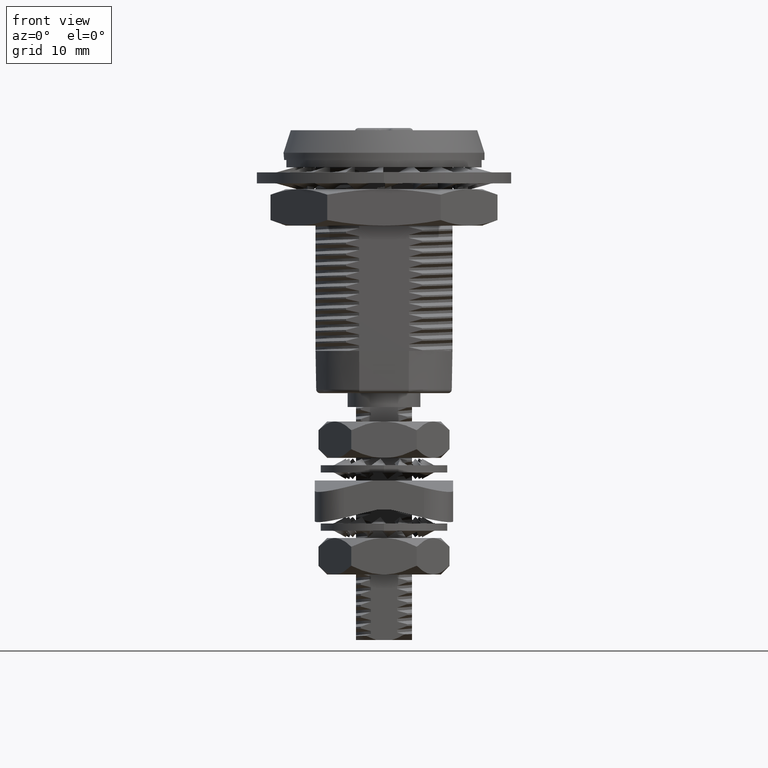
[diagram: clean part render]
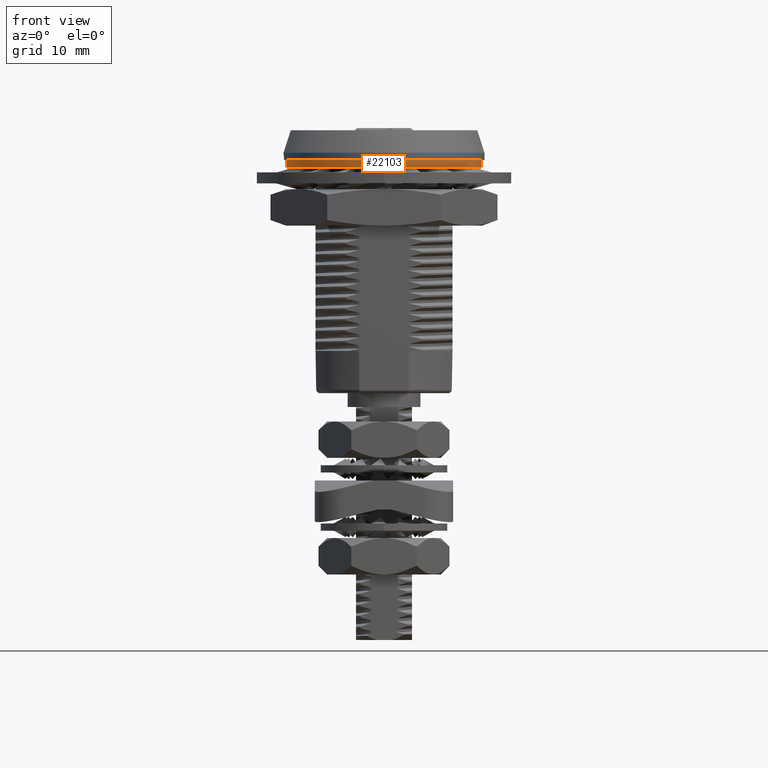
[diagram: same view with one face highlighted and labeled with its STEP entity id]
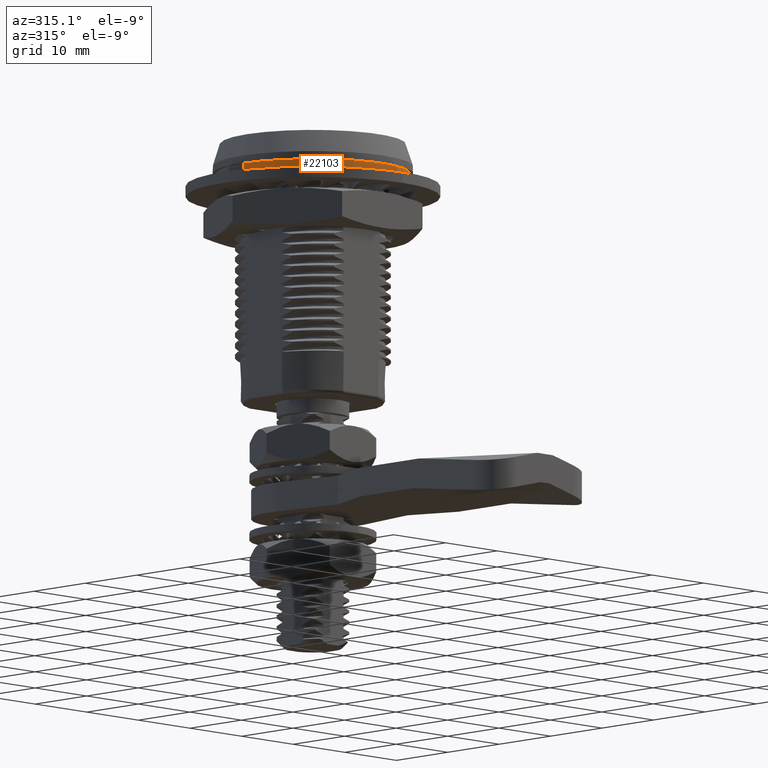
[diagram: same view with one face highlighted and labeled with its STEP entity id]
A machine part, front view. The second image highlights one B-rep face of the part: STEP entity #22103.
A second angle (auxiliary view) of the same face is appended — the face is thin or edge-on in the first view.
In plain terms, the highlighted face is a freeform B-spline surface patch.
Its self-contained STEP definition (entity closure, byte-faithful):
#1882=FACE_OUTER_BOUND('',#3160,.T.);
#3160=EDGE_LOOP('',(#16792,#16793,#16794,#16795));
#4601=B_SPLINE_CURVE_WITH_KNOTS('',3,(#48551,#48552,#48553,#48554,#48555,
#48556,#48557,#48558,#48559,#48560,#48561,#48562,#48563,#48564,#48565,#48566,
#48567,#48568,#48569,#48570,#48571,#48572,#48573,#48574,#48575,#48576),
 .UNSPECIFIED.,.F.,.F.,(4,1,1,1,1,1,1,1,1,1,1,1,1,1,1,1,1,1,1,1,1,1,1,4),
(0.,0.0252174026924127,0.0704347929121071,0.11565218313212,0.160869573351814,
0.206086963571508,0.251304353791203,0.296521744011215,0.34173913423091,
0.386956524450604,0.432173914670298,0.477391304890311,0.522608695110006,
0.5678260853297,0.613043475549394,0.658260865769407,0.703478255989101,0.748695646208795,
0.79391303642849,0.839130426648184,0.884347816868197,0.929565207087891,
0.974782597307585,1.),.UNSPECIFIED.);
#4604=B_SPLINE_CURVE_WITH_KNOTS('',3,(#48718,#48719,#48720,#48721,#48722,
#48723,#48724,#48725,#48726,#48727,#48728,#48729,#48730,#48731,#48732,#48733,
#48734,#48735,#48736,#48737,#48738,#48739,#48740,#48741,#48742,#48743),
 .UNSPECIFIED.,.F.,.F.,(4,1,1,1,1,1,1,1,1,1,1,1,1,1,1,1,1,1,1,1,1,1,1,4),
(0.0192307576991185,0.0434782608694987,0.0869565217389974,0.130434782608802,
0.173913043478301,0.2173913043478,0.260869565217298,0.304347826087103,0.347826086956602,
0.391304347826101,0.434782608695599,0.478260869565404,0.521739130434903,
0.565217391304401,0.6086956521739,0.652173913043705,0.695652173913203,0.739130434782702,
0.782608695652201,0.826086956521699,0.869565217391504,0.913043478261003,
0.956521739130501,0.980769242300883),.UNSPECIFIED.);
#6273=LINE('',#49498,#7608);
#6274=LINE('',#49499,#7609);
#7608=VECTOR('',#26180,1.00000000000001);
#7609=VECTOR('',#26181,1.00000000000001);
#9204=VERTEX_POINT('',#48523);
#9205=VERTEX_POINT('',#48524);
#9209=VERTEX_POINT('',#48716);
#9210=VERTEX_POINT('',#48717);
#11819=EDGE_CURVE('',#9205,#9204,#4601,.T.);
#11823=EDGE_CURVE('',#9209,#9210,#4604,.T.);
#12154=EDGE_CURVE('',#9210,#9204,#6273,.T.);
#12155=EDGE_CURVE('',#9205,#9209,#6274,.T.);
#16792=ORIENTED_EDGE('',*,*,#11823,.F.);
#16793=ORIENTED_EDGE('',*,*,#12155,.F.);
#16794=ORIENTED_EDGE('',*,*,#11819,.T.);
#16795=ORIENTED_EDGE('',*,*,#12154,.F.);
#21334=B_SPLINE_SURFACE_WITH_KNOTS('',3,1,((#49500,#49501),(#49502,#49503),
(#49504,#49505),(#49506,#49507),(#49508,#49509),(#49510,#49511),(#49512,
#49513),(#49514,#49515),(#49516,#49517),(#49518,#49519),(#49520,#49521),
(#49522,#49523),(#49524,#49525),(#49526,#49527),(#49528,#49529),(#49530,
#49531),(#49532,#49533),(#49534,#49535),(#49536,#49537),(#49538,#49539),
(#49540,#49541),(#49542,#49543),(#49544,#49545),(#49546,#49547),(#49548,
#49549),(#49550,#49551)),.UNSPECIFIED.,.F.,.F.,.F.,(4,1,1,1,1,1,1,1,1,1,
1,1,1,1,1,1,1,1,1,1,1,1,1,4),(2,2),(0.,0.0434782608694987,0.0869565217389974,
0.130434782608802,0.173913043478301,0.2173913043478,0.260869565217298,0.304347826087103,
0.347826086956602,0.391304347826101,0.434782608695599,0.478260869565404,
0.521739130434903,0.565217391304401,0.6086956521739,0.652173913043705,0.695652173913203,
0.739130434782702,0.782608695652201,0.826086956521699,0.869565217391504,
0.913043478261003,0.956521739130501,1.),(0.,0.157103117614296),
 .UNSPECIFIED.);
#22103=ADVANCED_FACE('',(#1882),#21334,.T.);
#26180=DIRECTION('',(0.,0.,-1.));
#26181=DIRECTION('',(0.,0.,1.));
#48523=CARTESIAN_POINT('',(182.399986141794,205.,-5.50000000000001));
#48524=CARTESIAN_POINT('',(155.600013858206,205.,-5.50000000000001));
#48551=CARTESIAN_POINT('Ctrl Pts',(155.600013858559,205.000000000097,-5.49999999999992));
#48552=CARTESIAN_POINT('Ctrl Pts',(155.600016264807,204.646137906937,-5.49999999999992));
#48553=CARTESIAN_POINT('Ctrl Pts',(155.639142188841,203.657765190564,-5.49999999999992));
#48554=CARTESIAN_POINT('Ctrl Pts',(155.88267756231,202.049112826764,-5.49999999999992));
#48555=CARTESIAN_POINT('Ctrl Pts',(156.43258450575,200.221721130288,-5.49999999999992));
#48556=CARTESIAN_POINT('Ctrl Pts',(157.23566961592,198.490590464957,-5.49999999999992));
#48557=CARTESIAN_POINT('Ctrl Pts',(158.27575428047,196.890595867665,-5.49999999999992));
#48558=CARTESIAN_POINT('Ctrl Pts',(159.531885358765,195.453970099884,-5.49999999999992));
#48559=CARTESIAN_POINT('Ctrl Pts',(160.978757332288,194.20965488249,-5.49999999999992));
#48560=CARTESIAN_POINT('Ctrl Pts',(162.587222089757,193.18271769101,-5.49999999999992));
#48561=CARTESIAN_POINT('Ctrl Pts',(164.324876136103,192.39384679803,-5.49999999999992));
#48562=CARTESIAN_POINT('Ctrl Pts',(166.156713379758,191.85893448422,-5.49999999999992));
#48563=CARTESIAN_POINT('Ctrl Pts',(168.045830351734,191.58875688174,-5.49999999999992));
#48564=CARTESIAN_POINT('Ctrl Pts',(169.954169648266,191.58875688174,-5.49999999999992));
#48565=CARTESIAN_POINT('Ctrl Pts',(171.843286620242,191.85893448422,-5.49999999999992));
#48566=CARTESIAN_POINT('Ctrl Pts',(173.675123863897,192.39384679803,-5.49999999999992));
#48567=CARTESIAN_POINT('Ctrl Pts',(175.412777910243,193.18271769101,-5.49999999999992));
#48568=CARTESIAN_POINT('Ctrl Pts',(177.021242667712,194.20965488249,-5.49999999999992));
#48569=CARTESIAN_POINT('Ctrl Pts',(178.468114641235,195.453970099884,-5.49999999999992));
#48570=CARTESIAN_POINT('Ctrl Pts',(179.72424571953,196.890595867665,-5.49999999999992));
#48571=CARTESIAN_POINT('Ctrl Pts',(180.76433038408,198.490590464957,-5.49999999999992));
#48572=CARTESIAN_POINT('Ctrl Pts',(181.56741549425,200.221721130288,-5.49999999999992));
#48573=CARTESIAN_POINT('Ctrl Pts',(182.11732243769,202.049112826764,-5.49999999999992));
#48574=CARTESIAN_POINT('Ctrl Pts',(182.360857811159,203.657765190563,-5.49999999999992));
#48575=CARTESIAN_POINT('Ctrl Pts',(182.399983735193,204.646137906937,-5.49999999999992));
#48576=CARTESIAN_POINT('Ctrl Pts',(182.399986141441,205.000000000097,-5.49999999999992));
#48716=CARTESIAN_POINT('',(155.600013858206,205.,-4.5));
#48717=CARTESIAN_POINT('',(182.399986142146,205.,-4.5));
#48718=CARTESIAN_POINT('Ctrl Pts',(155.600013858559,205.000000000094,-4.5));
#48719=CARTESIAN_POINT('Ctrl Pts',(155.600016264807,204.646137906935,-4.5));
#48720=CARTESIAN_POINT('Ctrl Pts',(155.639142188841,203.657765190563,-4.5));
#48721=CARTESIAN_POINT('Ctrl Pts',(155.88267756231,202.049112826764,-4.5));
#48722=CARTESIAN_POINT('Ctrl Pts',(156.43258450575,200.221721130288,-4.5));
#48723=CARTESIAN_POINT('Ctrl Pts',(157.23566961592,198.490590464957,-4.5));
#48724=CARTESIAN_POINT('Ctrl Pts',(158.27575428047,196.890595867665,-4.5));
#48725=CARTESIAN_POINT('Ctrl Pts',(159.531885358765,195.453970099884,-4.5));
#48726=CARTESIAN_POINT('Ctrl Pts',(160.978757332288,194.20965488249,-4.5));
#48727=CARTESIAN_POINT('Ctrl Pts',(162.587222089757,193.18271769101,-4.5));
#48728=CARTESIAN_POINT('Ctrl Pts',(164.324876136103,192.39384679803,-4.5));
#48729=CARTESIAN_POINT('Ctrl Pts',(166.156713379758,191.85893448422,-4.5));
#48730=CARTESIAN_POINT('Ctrl Pts',(168.045830351734,191.58875688174,-4.5));
#48731=CARTESIAN_POINT('Ctrl Pts',(169.954169648266,191.58875688174,-4.5));
#48732=CARTESIAN_POINT('Ctrl Pts',(171.843286620242,191.85893448422,-4.5));
#48733=CARTESIAN_POINT('Ctrl Pts',(173.675123863897,192.39384679803,-4.5));
#48734=CARTESIAN_POINT('Ctrl Pts',(175.412777910243,193.18271769101,-4.5));
#48735=CARTESIAN_POINT('Ctrl Pts',(177.021242667712,194.20965488249,-4.5));
#48736=CARTESIAN_POINT('Ctrl Pts',(178.468114641235,195.453970099884,-4.5));
#48737=CARTESIAN_POINT('Ctrl Pts',(179.72424571953,196.890595867665,-4.5));
#48738=CARTESIAN_POINT('Ctrl Pts',(180.76433038408,198.490590464957,-4.5));
#48739=CARTESIAN_POINT('Ctrl Pts',(181.56741549425,200.221721130288,-4.5));
#48740=CARTESIAN_POINT('Ctrl Pts',(182.11732243769,202.049112826764,-4.5));
#48741=CARTESIAN_POINT('Ctrl Pts',(182.360857811159,203.657765190562,-4.5));
#48742=CARTESIAN_POINT('Ctrl Pts',(182.399983735193,204.646137906935,-4.5));
#48743=CARTESIAN_POINT('Ctrl Pts',(182.399986141442,205.000000000094,-4.5));
#49498=CARTESIAN_POINT('',(182.399986141441,204.999999999906,-4.5));
#49499=CARTESIAN_POINT('',(155.600013858559,204.999999999906,-5.50000000000001));
#49500=CARTESIAN_POINT('Ctrl Pts',(155.62644183906,205.841392961693,-5.54549693616049));
#49501=CARTESIAN_POINT('Ctrl Pts',(155.62644183906,205.841392961693,-3.97446576001753));
#49502=CARTESIAN_POINT('Ctrl Pts',(155.58660058536,205.208134368163,-5.54549693616049));
#49503=CARTESIAN_POINT('Ctrl Pts',(155.58660058536,205.208134368163,-3.97446576001753));
#49504=CARTESIAN_POINT('Ctrl Pts',(155.59702707869,203.935952997663,-5.54549693616049));
#49505=CARTESIAN_POINT('Ctrl Pts',(155.59702707869,203.935952997663,-3.97446576001753));
#49506=CARTESIAN_POINT('Ctrl Pts',(155.88267756231,202.049112826764,-5.54549693616049));
#49507=CARTESIAN_POINT('Ctrl Pts',(155.88267756231,202.049112826764,-3.97446576001753));
#49508=CARTESIAN_POINT('Ctrl Pts',(156.43258450575,200.221721130288,-5.54549693616049));
#49509=CARTESIAN_POINT('Ctrl Pts',(156.43258450575,200.221721130288,-3.97446576001753));
#49510=CARTESIAN_POINT('Ctrl Pts',(157.23566961592,198.490590464957,-5.54549693616049));
#49511=CARTESIAN_POINT('Ctrl Pts',(157.23566961592,198.490590464957,-3.97446576001753));
#49512=CARTESIAN_POINT('Ctrl Pts',(158.27575428047,196.890595867665,-5.54549693616049));
#49513=CARTESIAN_POINT('Ctrl Pts',(158.27575428047,196.890595867665,-3.97446576001753));
#49514=CARTESIAN_POINT('Ctrl Pts',(159.531885358765,195.453970099884,-5.54549693616049));
#49515=CARTESIAN_POINT('Ctrl Pts',(159.531885358765,195.453970099884,-3.97446576001753));
#49516=CARTESIAN_POINT('Ctrl Pts',(160.978757332288,194.20965488249,-5.54549693616049));
#49517=CARTESIAN_POINT('Ctrl Pts',(160.978757332288,194.20965488249,-3.97446576001753));
#49518=CARTESIAN_POINT('Ctrl Pts',(162.587222089757,193.18271769101,-5.54549693616049));
#49519=CARTESIAN_POINT('Ctrl Pts',(162.587222089757,193.18271769101,-3.97446576001753));
#49520=CARTESIAN_POINT('Ctrl Pts',(164.324876136103,192.39384679803,-5.54549693616049));
#49521=CARTESIAN_POINT('Ctrl Pts',(164.324876136103,192.39384679803,-3.97446576001753));
#49522=CARTESIAN_POINT('Ctrl Pts',(166.156713379758,191.85893448422,-5.54549693616049));
#49523=CARTESIAN_POINT('Ctrl Pts',(166.156713379758,191.85893448422,-3.97446576001753));
#49524=CARTESIAN_POINT('Ctrl Pts',(168.045830351734,191.58875688174,-5.54549693616049));
#49525=CARTESIAN_POINT('Ctrl Pts',(168.045830351734,191.58875688174,-3.97446576001753));
#49526=CARTESIAN_POINT('Ctrl Pts',(169.954169648266,191.58875688174,-5.54549693616049));
#49527=CARTESIAN_POINT('Ctrl Pts',(169.954169648266,191.58875688174,-3.97446576001753));
#49528=CARTESIAN_POINT('Ctrl Pts',(171.843286620242,191.85893448422,-5.54549693616049));
#49529=CARTESIAN_POINT('Ctrl Pts',(171.843286620242,191.85893448422,-3.97446576001753));
#49530=CARTESIAN_POINT('Ctrl Pts',(173.675123863897,192.39384679803,-5.54549693616049));
#49531=CARTESIAN_POINT('Ctrl Pts',(173.675123863897,192.39384679803,-3.97446576001753));
#49532=CARTESIAN_POINT('Ctrl Pts',(175.412777910243,193.18271769101,-5.54549693616049));
#49533=CARTESIAN_POINT('Ctrl Pts',(175.412777910243,193.18271769101,-3.97446576001753));
#49534=CARTESIAN_POINT('Ctrl Pts',(177.021242667712,194.20965488249,-5.54549693616049));
#49535=CARTESIAN_POINT('Ctrl Pts',(177.021242667712,194.20965488249,-3.97446576001753));
#49536=CARTESIAN_POINT('Ctrl Pts',(178.468114641235,195.453970099884,-5.54549693616049));
#49537=CARTESIAN_POINT('Ctrl Pts',(178.468114641235,195.453970099884,-3.97446576001753));
#49538=CARTESIAN_POINT('Ctrl Pts',(179.72424571953,196.890595867665,-5.54549693616049));
#49539=CARTESIAN_POINT('Ctrl Pts',(179.72424571953,196.890595867665,-3.97446576001753));
#49540=CARTESIAN_POINT('Ctrl Pts',(180.76433038408,198.490590464957,-5.54549693616049));
#49541=CARTESIAN_POINT('Ctrl Pts',(180.76433038408,198.490590464957,-3.97446576001753));
#49542=CARTESIAN_POINT('Ctrl Pts',(181.56741549425,200.221721130288,-5.54549693616049));
#49543=CARTESIAN_POINT('Ctrl Pts',(181.56741549425,200.221721130288,-3.97446576001753));
#49544=CARTESIAN_POINT('Ctrl Pts',(182.11732243769,202.049112826764,-5.54549693616049));
#49545=CARTESIAN_POINT('Ctrl Pts',(182.11732243769,202.049112826764,-3.97446576001753));
#49546=CARTESIAN_POINT('Ctrl Pts',(182.40297292131,203.935952997663,-5.54549693616049));
#49547=CARTESIAN_POINT('Ctrl Pts',(182.40297292131,203.935952997663,-3.97446576001753));
#49548=CARTESIAN_POINT('Ctrl Pts',(182.41339941464,205.208134368163,-5.54549693616049));
#49549=CARTESIAN_POINT('Ctrl Pts',(182.41339941464,205.208134368163,-3.97446576001753));
#49550=CARTESIAN_POINT('Ctrl Pts',(182.37355816094,205.841392961693,-5.54549693616049));
#49551=CARTESIAN_POINT('Ctrl Pts',(182.37355816094,205.841392961693,-3.97446576001753));